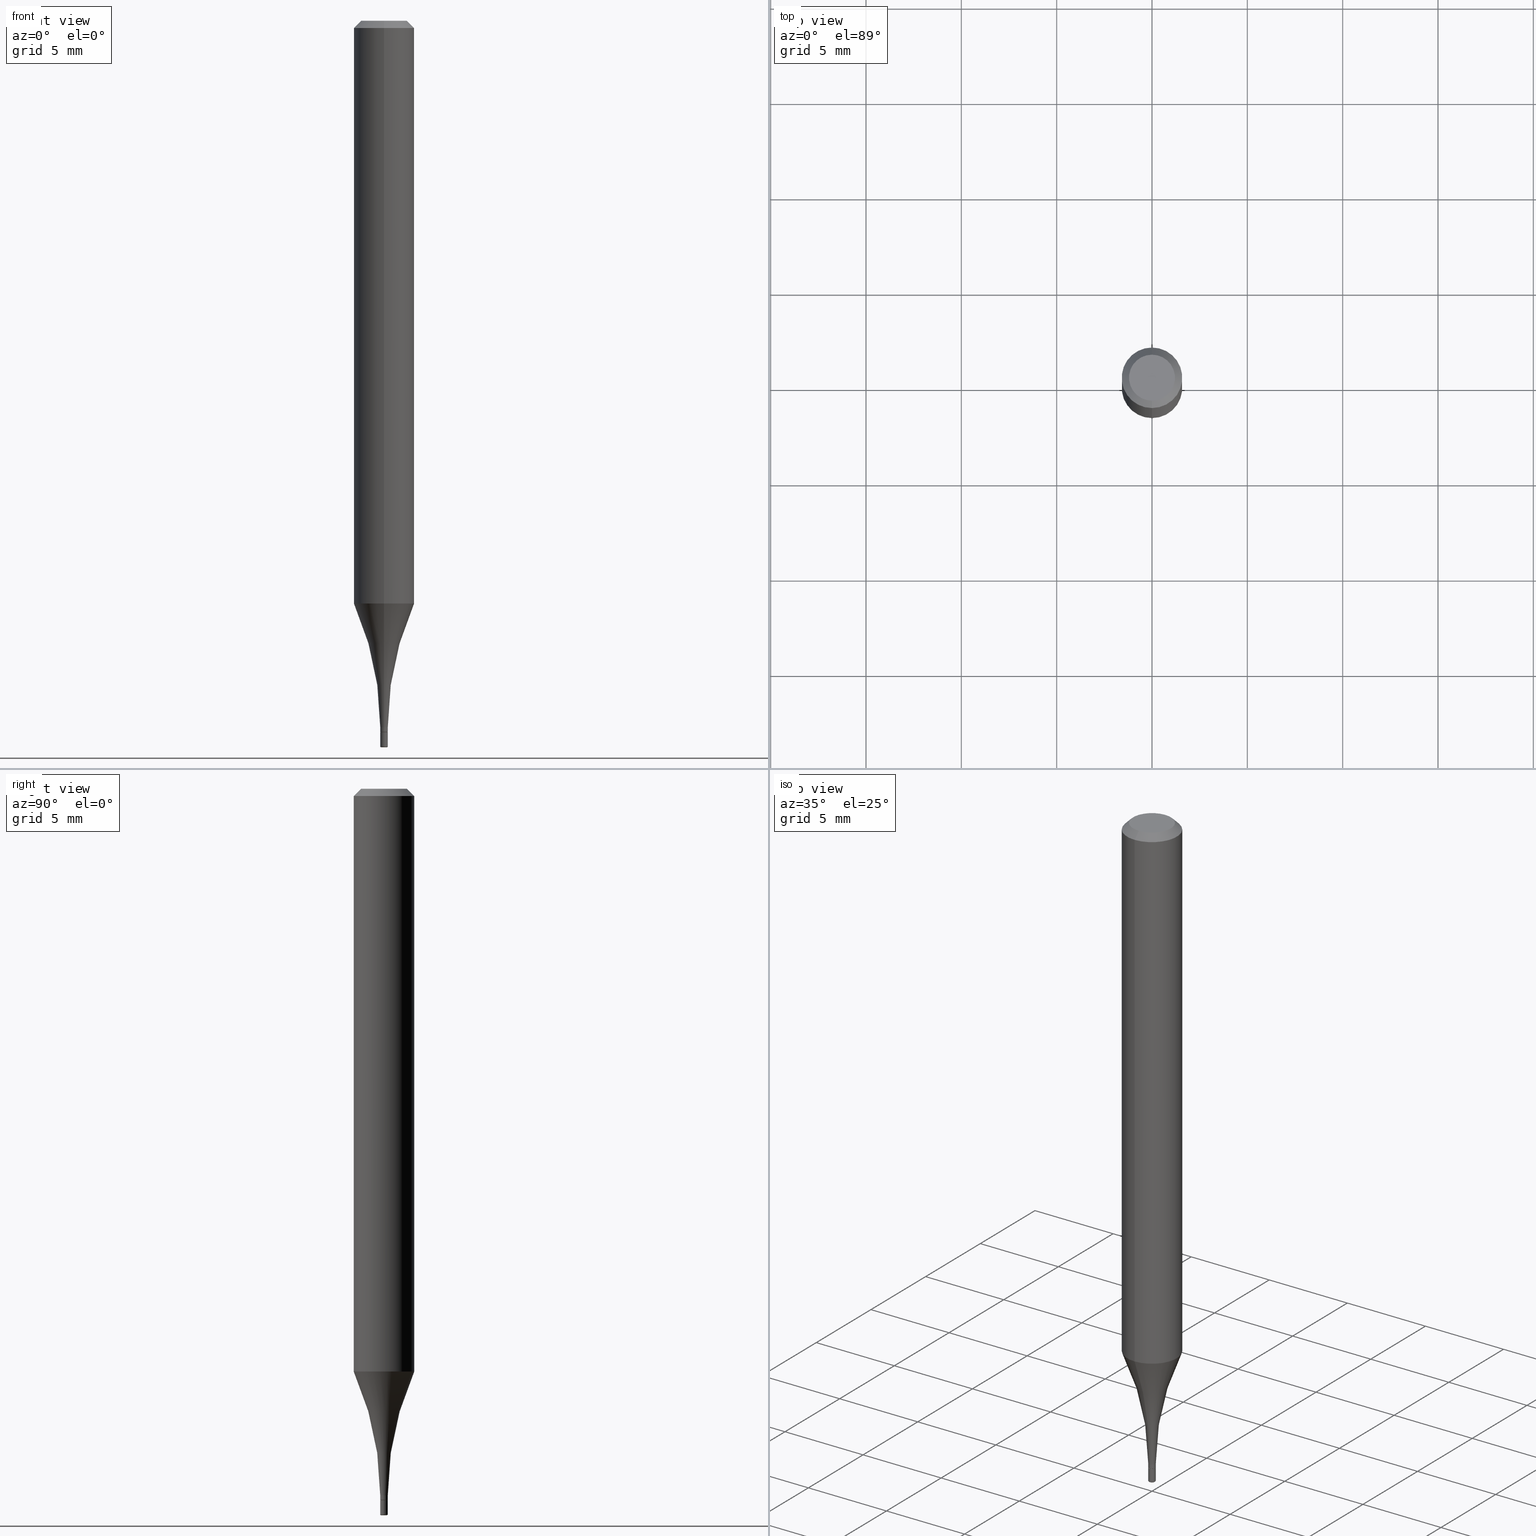
[diagram: canonical four-view strip — front | top / right | iso, engineering-drawing reading convention]
A machine part, canonical four-view strip (front | top / right | iso — engineering-drawing reading convention). The complete STEP part file that produces these views, byte-faithful:
ISO-10303-21;
HEADER;
FILE_DESCRIPTION (( 'STEP AP203' ),
    '1' );
FILE_NAME ('36874.STEP',
    '2024-02-29T19:32:57',
    ( '' ),
    ( '' ),
    'SwSTEP 2.0',
    'SolidWorks 2023',
    '' );
FILE_SCHEMA (( 'CONFIG_CONTROL_DESIGN' ));
ENDSEC;

DATA;
#1 = DIRECTION ( 'NONE',  ( 1.000000000000000000, -6.982962677686216223E-15, 4.883557194083094964E-29 ) ) ;
#2 = CIRCLE ( 'NONE', #344, 0.005800000000000006539 ) ;
#3 = CARTESIAN_POINT ( 'NONE',  ( 5.542233338928764555E-17, 0.007799999999999977091, -2.725085578910728171E-17 ) ) ;
#4 = EDGE_LOOP ( 'NONE', ( #346, #88 ) ) ;
#5 = ORIENTED_EDGE ( 'NONE', *, *, #269, .T. ) ;
#6 = DIRECTION ( 'NONE',  ( -2.443919900360709498E-29, 3.493699460141969769E-15, 1.000000000000000000 ) ) ;
#7 = DIRECTION ( 'NONE',  ( -2.443919900360709498E-29, 3.493699460141969375E-15, 1.000000000000000000 ) ) ;
#8 = AXIS2_PLACEMENT_3D ( 'NONE', #196, #116, #507 ) ;
#9 = AXIS2_PLACEMENT_3D ( 'NONE', #169, #374, #487 ) ;
#10 = VECTOR ( 'NONE', #160, 39.37007874015748143 ) ;
#11 = VECTOR ( 'NONE', #147, 39.37007874015748143 ) ;
#12 = DIRECTION ( 'NONE',  ( 1.000000000000000000, -6.982962677686265922E-15, 4.876176775795935793E-29 ) ) ;
#13 = DIRECTION ( 'NONE',  ( -2.445468806185136597E-29, 3.491481338843145583E-15, 1.000000000000000000 ) ) ;
#14 = PRODUCT ( '36874', '36874', '', ( #97 ) ) ;
#15 = ORIENTED_EDGE ( 'NONE', *, *, #288, .F. ) ;
#16 = APPROVAL_STATUS ( 'not_yet_approved' ) ;
#17 = DIRECTION ( 'NONE',  ( -2.443919900360709498E-29, 3.493699460141969769E-15, 1.000000000000000000 ) ) ;
#18 = ORIENTED_EDGE ( 'NONE', *, *, #42, .T. ) ;
#19 = PERSON_AND_ORGANIZATION_ROLE ( 'creator' ) ;
#20 = CARTESIAN_POINT ( 'NONE',  ( 3.589629549649811415E-29, -5.131545767056525971E-15, -1.468800000000000106 ) ) ;
#21 = CC_DESIGN_PERSON_AND_ORGANIZATION_ASSIGNMENT ( #497, #19, ( #211 ) ) ;
#22 = PERSON_AND_ORGANIZATION ( #204, #476 ) ;
#23 = CIRCLE ( 'NONE', #82, 0.6250000000000000000 ) ;
#24 = DIRECTION ( 'NONE',  ( -2.443919900360709498E-29, 3.493699460141969769E-15, 1.000000000000000000 ) ) ;
#25 = VERTEX_POINT ( 'NONE', #224 ) ;
#26 = EDGE_CURVE ( 'NONE', #478, #298, #102, .T. ) ;
#27 = COORDINATED_UNIVERSAL_TIME_OFFSET ( 5, 0, .BEHIND. ) ;
#28 = DIRECTION ( 'NONE',  ( -6.982962677686265922E-15, -1.000000000000000000, 4.370956789862820361E-15 ) ) ;
#29 = CIRCLE ( 'NONE', #154, 0.04750000000000000749 ) ;
#30 = COORDINATED_UNIVERSAL_TIME_OFFSET ( 5, 0, .BEHIND. ) ;
#31 = CARTESIAN_POINT ( 'NONE',  ( 3.665879850540992079E-31, -5.240549190212850327E-17, -0.01499999999999970281 ) ) ;
#32 = ORIENTED_EDGE ( 'NONE', *, *, #108, .F. ) ;
#33 = DIRECTION ( 'NONE',  ( -2.443919900360709498E-29, 3.493699460141969769E-15, 1.000000000000000000 ) ) ;
#34 = DIRECTION ( 'NONE',  ( -2.445468806185136597E-29, 3.491481338843145583E-15, 1.000000000000000000 ) ) ;
#35 = CC_DESIGN_DATE_AND_TIME_ASSIGNMENT ( #230, #72, ( #211 ) ) ;
#36 = TOROIDAL_SURFACE ( 'NONE', #466, 0.005800000000000002202, 0.001999999999999933255 ) ;
#37 = DIRECTION ( 'NONE',  ( 1.000000000000000000, -6.982962677686258033E-15, 0.000000000000000000 ) ) ;
#38 = LOCAL_TIME ( 14, 32, 57.00000000000000000, #30 ) ;
#39 = ORIENTED_EDGE ( 'NONE', *, *, #436, .F. ) ;
#40 = CIRCLE ( 'NONE', #94, 0.007299999999999967105 ) ;
#41 = CLOSED_SHELL ( 'NONE', ( #459, #520, #260, #178, #402, #488, #418, #323, #322, #247, #136, #161 ) ) ;
#42 = EDGE_CURVE ( 'NONE', #326, #233, #185, .T. ) ;
#43 = DIRECTION ( 'NONE',  ( -2.443919900360709498E-29, 3.493699460141969375E-15, 1.000000000000000000 ) ) ;
#44 = CARTESIAN_POINT ( 'NONE',  ( 3.567938988224114792E-29, -5.094071273372150151E-15, -1.459000000000000297 ) ) ;
#45 = DIRECTION ( 'NONE',  ( 1.000000000000000000, -6.982962677686283277E-15, 0.000000000000000000 ) ) ;
#46 = EDGE_CURVE ( 'NONE', #388, #257, #130, .T. ) ;
#47 = ORIENTED_EDGE ( 'NONE', *, *, #367, .F. ) ;
#48 = APPROVAL_PERSON_ORGANIZATION ( #265, #464, #463 ) ;
#49 = APPROVAL_STATUS ( 'not_yet_approved' ) ;
#50 = DIRECTION ( 'NONE',  ( 1.000000000000000000, -6.982962677686217012E-15, 0.000000000000000000 ) ) ;
#51 = LENGTH_MEASURE_WITH_UNIT ( LENGTH_MEASURE( 0.02539999999999999897 ), #381 );
#52 = EDGE_LOOP ( 'NONE', ( #187, #182, #5, #379 ) ) ;
#53 = EDGE_LOOP ( 'NONE', ( #454, #380, #150, #179 ) ) ;
#54 = AXIS2_PLACEMENT_3D ( 'NONE', #111, #64, #28 ) ;
#55 = ORIENTED_EDGE ( 'NONE', *, *, #308, .T. ) ;
#56 = CC_DESIGN_SECURITY_CLASSIFICATION ( #93, ( #386 ) ) ;
#57 = AXIS2_PLACEMENT_3D ( 'NONE', #31, #152, #198 ) ;
#58 = EDGE_CURVE ( 'NONE', #257, #421, #135, .T. ) ;
#59 = APPLICATION_PROTOCOL_DEFINITION ( 'international standard', 'config_control_design', 1994, #441 ) ;
#60 = ORIENTED_EDGE ( 'NONE', *, *, #327, .T. ) ;
#61 = CC_DESIGN_PERSON_AND_ORGANIZATION_ASSIGNMENT ( #22, #390, ( #386 ) ) ;
#62 = DIRECTION ( 'NONE',  ( -2.445468806185136597E-29, 3.491481338843145583E-15, 1.000000000000000000 ) ) ;
#63 = APPROVAL_DATE_TIME ( #357, #303 ) ;
#64 = DIRECTION ( 'NONE',  ( -2.443919900360709498E-29, 3.493699460141969769E-15, 1.000000000000000000 ) ) ;
#65 = EDGE_CURVE ( 'NONE', #25, #117, #276, .T. ) ;
#66 = ORIENTED_EDGE ( 'NONE', *, *, #144, .F. ) ;
#67 = AXIS2_PLACEMENT_3D ( 'NONE', #408, #207, #369 ) ;
#68 = AXIS2_PLACEMENT_3D ( 'NONE', #20, #315, #107 ) ;
#69 = DIRECTION ( 'NONE',  ( -6.982962677686265133E-15, -1.000000000000000000, 3.493699460141969375E-15 ) ) ;
#70 = PERSON_AND_ORGANIZATION ( #204, #476 ) ;
#71 = CYLINDRICAL_SURFACE ( 'NONE', #398, 0.007799999999999977091 ) ;
#72 = DATE_TIME_ROLE ( 'creation_date' ) ;
#73 = CARTESIAN_POINT ( 'NONE',  ( -5.446710888591676230E-17, -0.007800000000005097994, -1.468299999999999939 ) ) ;
#74 = AXIS2_PLACEMENT_3D ( 'NONE', #87, #457, #45 ) ;
#75 = DIRECTION ( 'NONE',  ( -2.443919900360709498E-29, 3.493699460141969769E-15, 1.000000000000000000 ) ) ;
#76 = DIRECTION ( 'NONE',  ( 7.105427357601001859E-15, 1.000000000000000000, -3.491481338843145583E-15 ) ) ;
#77 = CARTESIAN_POINT ( 'NONE',  ( 0.005800000000000006539, -5.277723191795298637E-15, -1.500000000000000222 ) ) ;
#78 = EDGE_LOOP ( 'NONE', ( #251, #215 ) ) ;
#79 = EDGE_CURVE ( 'NONE', #453, #388, #191, .T. ) ;
#80 = DIRECTION ( 'NONE',  ( -2.443919900360709498E-29, 3.493699460141969769E-15, 1.000000000000000000 ) ) ;
#81 = LOCAL_TIME ( 14, 32, 57.00000000000000000, #258 ) ;
#82 = AXIS2_PLACEMENT_3D ( 'NONE', #246, #320, #412 ) ;
#83 = ORIENTED_EDGE ( 'NONE', *, *, #46, .T. ) ;
#84 = DIRECTION ( 'NONE',  ( -6.982962677686265922E-15, -1.000000000000000000, 3.493699460141969375E-15 ) ) ;
#85 = CARTESIAN_POINT ( 'NONE',  ( 3.665879850540992079E-31, -5.240549190212850327E-17, -0.01499999999999970281 ) ) ;
#86 = EDGE_CURVE ( 'NONE', #401, #233, #149, .T. ) ;
#87 = CARTESIAN_POINT ( 'NONE',  ( 3.591904582524729329E-29, -5.128287790492812410E-15, -1.468800000000000106 ) ) ;
#88 = ORIENTED_EDGE ( 'NONE', *, *, #108, .T. ) ;
#89 = EDGE_LOOP ( 'NONE', ( #133, #96 ) ) ;
#90 = DIRECTION ( 'NONE',  ( -2.445468806185136597E-29, 3.491481338843145583E-15, 1.000000000000000000 ) ) ;
#91 = CIRCLE ( 'NONE', #157, 0.06250000000000001388 ) ;
#92 = DIRECTION ( 'NONE',  ( -6.982962677686265922E-15, -1.000000000000000000, 4.370956789862820361E-15 ) ) ;
#93 = SECURITY_CLASSIFICATION ( '', '', #151 ) ;
#94 = AXIS2_PLACEMENT_3D ( 'NONE', #241, #75, #278 ) ;
#95 = ORIENTED_EDGE ( 'NONE', *, *, #436, .T. ) ;
#96 = ORIENTED_EDGE ( 'NONE', *, *, #65, .T. ) ;
#97 = MECHANICAL_CONTEXT ( 'NONE', #446, 'mechanical' ) ;
#98 = CARTESIAN_POINT ( 'NONE',  ( 3.665879850540992079E-31, -5.240549190212850327E-17, -0.01499999999999970281 ) ) ;
#99 = ORIENTED_EDGE ( 'NONE', *, *, #481, .F. ) ;
#100 = EDGE_LOOP ( 'NONE', ( #99, #47 ) ) ;
#101 = DIRECTION ( 'NONE',  ( 1.000000000000000000, -6.982962677686283277E-15, 0.000000000000000000 ) ) ;
#102 = LINE ( 'NONE', #213, #336 ) ;
#103 = APPROVAL_PERSON_ORGANIZATION ( #189, #303, #194 ) ;
#104 = APPROVAL_DATE_TIME ( #393, #464 ) ;
#105 = DIRECTION ( 'NONE',  ( -6.982962677686265133E-15, -1.000000000000000000, 3.493699460141968980E-15 ) ) ;
#106 = EDGE_CURVE ( 'NONE', #186, #478, #91, .T. ) ;
#107 = DIRECTION ( 'NONE',  ( -6.982962677686265133E-15, -1.000000000000000000, 0.000000000000000000 ) ) ;
#108 = EDGE_CURVE ( 'NONE', #421, #238, #364, .T. ) ;
#109 = ADVANCED_BREP_SHAPE_REPRESENTATION ( '36874', ( #510, #177, #490 ), #414 ) ;
#110 = ORIENTED_EDGE ( 'NONE', *, *, #181, .T. ) ;
#111 = CARTESIAN_POINT ( 'NONE',  ( 2.940766808977116365E-29, -4.203965691105655160E-15, -1.203299178726387586 ) ) ;
#112 = AXIS2_PLACEMENT_3D ( 'NONE', #138, #403, #69 ) ;
#113 = PERSON_AND_ORGANIZATION_ROLE ( 'design_supplier' ) ;
#114 = CIRCLE ( 'NONE', #366, 0.007799999999999985764 ) ;
#115 = AXIS2_PLACEMENT_3D ( 'NONE', #259, #13, #425 ) ;
#116 = DIRECTION ( 'NONE',  ( -2.445468806185136597E-29, 3.491481338843145583E-15, 1.000000000000000000 ) ) ;
#117 = VERTEX_POINT ( 'NONE', #447 ) ;
#118 = PLANE ( 'NONE',  #360 ) ;
#119 = UNCERTAINTY_MEASURE_WITH_UNIT (LENGTH_MEASURE( 1.000000000000000082E-05 ), #292, 'distance_accuracy_value', 'NONE');
#120 = DIRECTION ( 'NONE',  ( -6.982962677686265922E-15, -1.000000000000000000, 3.483106191921935554E-15 ) ) ;
#121 = CIRCLE ( 'NONE', #474, 0.007799999999999935457 ) ;
#122 = APPROVAL ( #49, 'UNSPECIFIED' ) ;
#123 = LINE ( 'NONE', #440, #206 ) ;
#124 = LINE ( 'NONE', #477, #395 ) ;
#125 = EDGE_CURVE ( 'NONE', #25, #306, #173, .T. ) ;
#126 = CYLINDRICAL_SURFACE ( 'NONE', #139, 0.06250000000000001388 ) ;
#127 = EDGE_LOOP ( 'NONE', ( #110, #95, #287, #252 ) ) ;
#128 = CARTESIAN_POINT ( 'NONE',  ( 0.000000000000000000, 0.000000000000000000, 0.000000000000000000 ) ) ;
#129 = CIRCLE ( 'NONE', #245, 0.007799999999999968417 ) ;
#130 = CIRCLE ( 'NONE', #115, 0.007799999999999935457 ) ;
#131 = PERSON_AND_ORGANIZATION ( #204, #476 ) ;
#132 = ORIENTED_EDGE ( 'NONE', *, *, #351, .T. ) ;
#133 = ORIENTED_EDGE ( 'NONE', *, *, #232, .T. ) ;
#134 = FACE_OUTER_BOUND ( 'NONE', #171, .T. ) ;
#135 = LINE ( 'NONE', #375, #11 ) ;
#136 = ADVANCED_FACE ( 'NONE', ( #289 ), #358, .T. ) ;
#137 = DIRECTION ( 'NONE',  ( 6.982962677686265922E-15, 1.000000000000000000, -3.483106191921935554E-15 ) ) ;
#138 = CARTESIAN_POINT ( 'NONE',  ( 0.000000000000000000, 0.000000000000000000, 0.000000000000000000 ) ) ;
#139 = AXIS2_PLACEMENT_3D ( 'NONE', #280, #80, #180 ) ;
#140 = AXIS2_PLACEMENT_3D ( 'NONE', #128, #283, #479 ) ;
#141 = ORIENTED_EDGE ( 'NONE', *, *, #308, .F. ) ;
#142 = APPROVAL_ROLE ( '' ) ;
#143 = DIRECTION ( 'NONE',  ( -2.443919900360709498E-29, 3.493699460141969375E-15, 1.000000000000000000 ) ) ;
#144 = EDGE_CURVE ( 'NONE', #257, #388, #121, .T. ) ;
#145 = ORIENTED_EDGE ( 'NONE', *, *, #470, .T. ) ;
#146 = CARTESIAN_POINT ( 'NONE',  ( 3.663312271665334810E-29, -5.230239045587032951E-15, -1.498000000000000220 ) ) ;
#147 = DIRECTION ( 'NONE',  ( -2.445468806185136877E-29, 3.491481338843145188E-15, 1.000000000000000000 ) ) ;
#148 = ORIENTED_EDGE ( 'NONE', *, *, #174, .T. ) ;
#149 = LINE ( 'NONE', #3, #301 ) ;
#150 = ORIENTED_EDGE ( 'NONE', *, *, #407, .T. ) ;
#151 = SECURITY_CLASSIFICATION_LEVEL ( 'unclassified' ) ;
#152 = DIRECTION ( 'NONE',  ( -2.443919900360709498E-29, 3.493699460141969769E-15, 1.000000000000000000 ) ) ;
#153 = LINE ( 'NONE', #305, #10 ) ;
#154 = AXIS2_PLACEMENT_3D ( 'NONE', #462, #24, #105 ) ;
#155 = SHAPE_DEFINITION_REPRESENTATION ( #508, #109 ) ;
#156 = FACE_OUTER_BOUND ( 'NONE', #304, .T. ) ;
#157 = AXIS2_PLACEMENT_3D ( 'NONE', #217, #297, #92 ) ;
#158 = LOCAL_TIME ( 14, 32, 57.00000000000000000, #345 ) ;
#159 = AXIS2_PLACEMENT_3D ( 'NONE', #503, #391, #353 ) ;
#160 = DIRECTION ( 'NONE',  ( -2.443919900360709498E-29, 3.493699460141969375E-15, 1.000000000000000000 ) ) ;
#161 = ADVANCED_FACE ( 'NONE', ( #489 ), #378, .T. ) ;
#162 = DIRECTION ( 'NONE',  ( -2.443919900360709498E-29, 3.493699460141969769E-15, 1.000000000000000000 ) ) ;
#163 = ADVANCED_FACE ( 'NONE', ( #435 ), #36, .T. ) ;
#164 = CIRCLE ( 'NONE', #491, 0.001999999999999933255 ) ;
#165 = CARTESIAN_POINT ( 'NONE',  ( 3.589629549649811415E-29, -5.131545767056525971E-15, -1.468800000000000106 ) ) ;
#166 = FACE_OUTER_BOUND ( 'NONE', #295, .T. ) ;
#167 = CARTESIAN_POINT ( 'NONE',  ( 3.589629549649811415E-29, -5.131545767056525971E-15, -1.468800000000000106 ) ) ;
#168 = ADVANCED_FACE ( 'NONE', ( #156 ), #397, .T. ) ;
#169 = CARTESIAN_POINT ( 'NONE',  ( 3.589629549649811415E-29, -5.131545767056525971E-15, -1.468800000000000106 ) ) ;
#170 = CC_DESIGN_APPROVAL ( #303, ( #93 ) ) ;
#171 = EDGE_LOOP ( 'NONE', ( #448, #222, #60, #18 ) ) ;
#172 = CARTESIAN_POINT ( 'NONE',  ( 3.591904582524729329E-29, -5.128287790492812410E-15, -1.468800000000000106 ) ) ;
#173 = LINE ( 'NONE', #330, #205 ) ;
#174 = EDGE_CURVE ( 'NONE', #478, #186, #310, .T. ) ;
#175 = FACE_OUTER_BOUND ( 'NONE', #53, .T. ) ;
#176 = EDGE_LOOP ( 'NONE', ( #15, #255, #519, #409 ) ) ;
#177 = MANIFOLD_SOLID_BREP ( 'Body-Move/Copy2[2]', #41 ) ;
#178 = ADVANCED_FACE ( 'NONE', ( #361 ), #71, .T. ) ;
#179 = ORIENTED_EDGE ( 'NONE', *, *, #286, .F. ) ;
#180 = DIRECTION ( 'NONE',  ( -6.982962677686265133E-15, -1.000000000000000000, 3.493699460141969375E-15 ) ) ;
#181 = EDGE_CURVE ( 'NONE', #453, #291, #2, .T. ) ;
#182 = ORIENTED_EDGE ( 'NONE', *, *, #242, .T. ) ;
#183 = AXIS2_PLACEMENT_3D ( 'NONE', #334, #284, #12 ) ;
#184 = CIRCLE ( 'NONE', #282, 0.06250000000000000000 ) ;
#185 = CIRCLE ( 'NONE', #499, 0.007799999999999985764 ) ;
#186 = VERTEX_POINT ( 'NONE', #461 ) ;
#187 = ORIENTED_EDGE ( 'NONE', *, *, #86, .F. ) ;
#188 = DIRECTION ( 'NONE',  ( 6.982962677686265922E-15, 1.000000000000000000, -3.483106191921935554E-15 ) ) ;
#189 = PERSON_AND_ORGANIZATION ( #204, #476 ) ;
#190 = DIRECTION ( 'NONE',  ( -6.982962677686265133E-15, -1.000000000000000000, 3.493699460141968980E-15 ) ) ;
#191 = CIRCLE ( 'NONE', #240, 0.001999999999999933255 ) ;
#192 = LINE ( 'NONE', #311, #424 ) ;
#193 = AXIS2_PLACEMENT_3D ( 'NONE', #85, #445, #137 ) ;
#194 = APPROVAL_ROLE ( '' ) ;
#195 = CARTESIAN_POINT ( 'NONE',  ( 0.000000000000000000, 0.000000000000000000, 0.000000000000000000 ) ) ;
#196 = CARTESIAN_POINT ( 'NONE',  ( 0.000000000000000000, 0.000000000000000000, 0.000000000000000000 ) ) ;
#197 = CALENDAR_DATE ( 2024, 29, 2 ) ;
#198 = DIRECTION ( 'NONE',  ( -6.982962677686265922E-15, -1.000000000000000000, 3.483106191921935554E-15 ) ) ;
#199 = AXIS2_PLACEMENT_3D ( 'NONE', #98, #451, #188 ) ;
#200 = ORIENTED_EDGE ( 'NONE', *, *, #407, .F. ) ;
#201 = DIRECTION ( 'NONE',  ( 1.000000000000000000, -6.982962677686216223E-15, 4.883557194083094964E-29 ) ) ;
#202 = CYLINDRICAL_SURFACE ( 'NONE', #140, 0.007799999999999967550 ) ;
#203 = DIRECTION ( 'NONE',  ( -1.000000000000000000, 7.105427357600775456E-15, 0.000000000000000000 ) ) ;
#204 = PERSON ( 'UNSPECIFIED', 'UNSPECIFIED', 'UNSPECIFIED', ('UNSPECIFIED'), ('UNSPECIFIED'), ('UNSPECIFIED') ) ;
#205 = VECTOR ( 'NONE', #485, 39.37007874015748143 ) ;
#206 = VECTOR ( 'NONE', #277, 39.37007874015748143 ) ;
#207 = DIRECTION ( 'NONE',  ( 1.000000000000000000, -7.105427357601001070E-15, 4.926342672693569514E-29 ) ) ;
#208 = CARTESIAN_POINT ( 'NONE',  ( 3.565679134626275915E-29, -5.097307512347135368E-15, -1.459000000000000297 ) ) ;
#209 = DIRECTION ( 'NONE',  ( -2.443919900360709498E-29, 3.493699460141969769E-15, 1.000000000000000000 ) ) ;
#210 = DIRECTION ( 'NONE',  ( -2.443919900360709498E-29, 3.493699460141969769E-15, 1.000000000000000000 ) ) ;
#211 = PRODUCT_DEFINITION ( 'UNKNOWN', '', #386, #482 ) ;
#212 = AXIS2_PLACEMENT_3D ( 'NONE', #296, #6, #262 ) ;
#213 = CARTESIAN_POINT ( 'NONE',  ( 4.440892098500626162E-16, 0.06250000000000001388, -2.183562162588731352E-16 ) ) ;
#214 = ORIENTED_EDGE ( 'NONE', *, *, #481, .T. ) ;
#215 = ORIENTED_EDGE ( 'NONE', *, *, #351, .F. ) ;
#216 =( NAMED_UNIT ( * ) SI_UNIT ( $, .STERADIAN. ) SOLID_ANGLE_UNIT ( ) );
#217 = CARTESIAN_POINT ( 'NONE',  ( 2.940766808977116365E-29, -4.203965691105655160E-15, -1.203299178726387586 ) ) ;
#218 = EDGE_LOOP ( 'NONE', ( #39, #132, #333, #66 ) ) ;
#219 = APPLICATION_PROTOCOL_DEFINITION ( 'international standard', 'config_control_design', 1994, #446 ) ;
#220 = DIRECTION ( 'NONE',  ( -6.982962677686265922E-15, -1.000000000000000000, 0.000000000000000000 ) ) ;
#221 = VERTEX_POINT ( 'NONE', #73 ) ;
#222 = ORIENTED_EDGE ( 'NONE', *, *, #106, .F. ) ;
#223 = DIRECTION ( 'NONE',  ( 1.000000000000000000, 0.000000000000000000, 0.000000000000000000 ) ) ;
#224 = CARTESIAN_POINT ( 'NONE',  ( -3.773273898774340269E-16, -0.04750000000000000749, 4.392408844848639707E-16 ) ) ;
#225 = CONICAL_SURFACE ( 'NONE', #335, 0.007299999999999967105, 0.7853981633972775267 ) ;
#226 = ORIENTED_EDGE ( 'NONE', *, *, #288, .T. ) ;
#227 = ORIENTED_EDGE ( 'NONE', *, *, #58, .T. ) ;
#228 = CARTESIAN_POINT ( 'NONE',  ( -6.678992609098783564E-45, 9.547936849017268993E-31, 2.732901601281204480E-16 ) ) ;
#229 = CARTESIAN_POINT ( 'NONE',  ( 2.497557716197074649E-16, 0.007799999999994888279, -1.459000000000000297 ) ) ;
#230 = DATE_AND_TIME ( #234, #443 ) ;
#231 = DIRECTION ( 'NONE',  ( -1.000000000000000000, 6.982962677686265922E-15, -4.876176775795935793E-29 ) ) ;
#232 = EDGE_CURVE ( 'NONE', #117, #25, #29, .T. ) ;
#233 = VERTEX_POINT ( 'NONE', #229 ) ;
#234 = CALENDAR_DATE ( 2024, 29, 2 ) ;
#235 = FACE_OUTER_BOUND ( 'NONE', #486, .T. ) ;
#236 = PERSON_AND_ORGANIZATION_ROLE ( 'classification_officer' ) ;
#237 = PLANE ( 'NONE',  #159 ) ;
#238 = VERTEX_POINT ( 'NONE', #239 ) ;
#239 = CARTESIAN_POINT ( 'NONE',  ( 0.007799999999999999642, -5.182754899378765688E-15, -1.468800000000000106 ) ) ;
#240 = AXIS2_PLACEMENT_3D ( 'NONE', #496, #382, #492 ) ;
#241 = CARTESIAN_POINT ( 'NONE',  ( 3.589629549649811415E-29, -5.131545767056525971E-15, -1.468800000000000106 ) ) ;
#242 = EDGE_CURVE ( 'NONE', #401, #221, #129, .T. ) ;
#243 = DIRECTION ( 'NONE',  ( -2.445468806185136877E-29, 3.491481338843145188E-15, 1.000000000000000000 ) ) ;
#244 = CARTESIAN_POINT ( 'NONE',  ( 0.007799999999999967550, -5.446710888595264930E-17, 3.803417885120813835E-31 ) ) ;
#245 = AXIS2_PLACEMENT_3D ( 'NONE', #400, #465, #427 ) ;
#246 = CARTESIAN_POINT ( 'NONE',  ( -4.418818782439833684E-15, -0.6328000000000050251, -1.458999999999998076 ) ) ;
#247 = ADVANCED_FACE ( 'NONE', ( #355 ), #237, .F. ) ;
#248 = CARTESIAN_POINT ( 'NONE',  ( -5.446710888591711359E-17, -0.007800000000005083249, -1.459000000000000297 ) ) ;
#249 = PRODUCT_RELATED_PRODUCT_CATEGORY ( 'detail', '', ( #14 ) ) ;
#250 = DIRECTION ( 'NONE',  ( -2.443919900360709498E-29, 3.493699460141969769E-15, 1.000000000000000000 ) ) ;
#251 = ORIENTED_EDGE ( 'NONE', *, *, #181, .F. ) ;
#252 = ORIENTED_EDGE ( 'NONE', *, *, #79, .F. ) ;
#253 = CIRCLE ( 'NONE', #57, 0.06250000000000000000 ) ;
#254 = CARTESIAN_POINT ( 'NONE',  ( 3.663312271665334810E-29, -5.230239045587032951E-15, -1.498000000000000220 ) ) ;
#255 = ORIENTED_EDGE ( 'NONE', *, *, #367, .T. ) ;
#256 = EDGE_LOOP ( 'NONE', ( #83, #227, #383, #328 ) ) ;
#257 = VERTEX_POINT ( 'NONE', #432 ) ;
#258 = COORDINATED_UNIVERSAL_TIME_OFFSET ( 5, 0, .BEHIND. ) ;
#259 = CARTESIAN_POINT ( 'NONE',  ( 3.663312271665334810E-29, -5.230239045587032951E-15, -1.498000000000000220 ) ) ;
#260 = ADVANCED_FACE ( 'NONE', ( #235 ), #469, .T. ) ;
#261 = VERTEX_POINT ( 'NONE', #504 ) ;
#262 = DIRECTION ( 'NONE',  ( -6.982962677686265133E-15, -1.000000000000000000, 0.000000000000000000 ) ) ;
#263 = ORIENTED_EDGE ( 'NONE', *, *, #26, .F. ) ;
#264 = LOCAL_TIME ( 14, 32, 57.00000000000000000, #354 ) ;
#265 = PERSON_AND_ORGANIZATION ( #204, #476 ) ;
#266 = DIRECTION ( 'NONE',  ( -2.443919900360709498E-29, 3.493699460141969769E-15, 1.000000000000000000 ) ) ;
#267 = CARTESIAN_POINT ( 'NONE',  ( 5.446710888598878899E-17, 0.007799999999994870932, -1.468800000000000106 ) ) ;
#268 = CARTESIAN_POINT ( 'NONE',  ( 3.668203209277704895E-29, -5.237222008264718177E-15, -1.500000000000000222 ) ) ;
#269 = EDGE_CURVE ( 'NONE', #221, #326, #153, .T. ) ;
#270 = CC_DESIGN_APPROVAL ( #122, ( #211 ) ) ;
#271 = CIRCLE ( 'NONE', #319, 0.005800000000000006539 ) ;
#272 = CALENDAR_DATE ( 2024, 29, 2 ) ;
#273 = LINE ( 'NONE', #349, #452 ) ;
#274 = CARTESIAN_POINT ( 'NONE',  ( 4.364351673553919652E-16, 0.06249999999999995143, -0.01499999999999992138 ) ) ;
#275 = FACE_OUTER_BOUND ( 'NONE', #52, .T. ) ;
#276 = CIRCLE ( 'NONE', #290, 0.04750000000000000749 ) ;
#277 = DIRECTION ( 'NONE',  ( -4.937700262163704750E-15, -0.7071067811864243380, 0.7071067811866706965 ) ) ;
#278 = DIRECTION ( 'NONE',  ( -6.982962677686265133E-15, -1.000000000000000000, 0.000000000000000000 ) ) ;
#279 = ORIENTED_EDGE ( 'NONE', *, *, #327, .F. ) ;
#280 = CARTESIAN_POINT ( 'NONE',  ( 0.000000000000000000, 0.000000000000000000, 0.000000000000000000 ) ) ;
#281 = AXIS2_PLACEMENT_3D ( 'NONE', #172, #90, #101 ) ;
#282 = AXIS2_PLACEMENT_3D ( 'NONE', #472, #437, #120 ) ;
#283 = DIRECTION ( 'NONE',  ( -2.445468806185136597E-29, 3.491481338843145583E-15, 1.000000000000000000 ) ) ;
#284 = DIRECTION ( 'NONE',  ( -2.438088387897960049E-29, 3.491481338843145188E-15, 1.000000000000000000 ) ) ;
#285 = ORIENTED_EDGE ( 'NONE', *, *, #125, .F. ) ;
#286 = EDGE_CURVE ( 'NONE', #117, #298, #192, .T. ) ;
#287 = ORIENTED_EDGE ( 'NONE', *, *, #46, .F. ) ;
#288 = EDGE_CURVE ( 'NONE', #449, #401, #273, .T. ) ;
#289 = FACE_OUTER_BOUND ( 'NONE', #413, .T. ) ;
#290 = AXIS2_PLACEMENT_3D ( 'NONE', #228, #17, #190 ) ;
#291 = VERTEX_POINT ( 'NONE', #434 ) ;
#292 =( CONVERSION_BASED_UNIT ( 'INCH', #51 ) LENGTH_UNIT ( ) NAMED_UNIT ( #341 ) );
#293 = CIRCLE ( 'NONE', #67, 0.6250000000000000000 ) ;
#294 = AXIS2_PLACEMENT_3D ( 'NONE', #513, #321, #475 ) ;
#295 = EDGE_LOOP ( 'NONE', ( #338, #493, #200, #342 ) ) ;
#296 = CARTESIAN_POINT ( 'NONE',  ( 3.588407589699629660E-29, -5.129798917326454201E-15, -1.468299999999999939 ) ) ;
#297 = DIRECTION ( 'NONE',  ( -2.443919900360709498E-29, 3.493699460141969769E-15, 1.000000000000000000 ) ) ;
#298 = VERTEX_POINT ( 'NONE', #274 ) ;
#299 = DIRECTION ( 'NONE',  ( 0.000000000000000000, 0.000000000000000000, 1.000000000000000000 ) ) ;
#300 = ORIENTED_EDGE ( 'NONE', *, *, #415, .T. ) ;
#301 = VECTOR ( 'NONE', #143, 39.37007874015748143 ) ;
#302 = DIRECTION ( 'NONE',  ( 1.000000000000000000, -6.982962677686258033E-15, 0.000000000000000000 ) ) ;
#303 = APPROVAL ( #495, 'UNSPECIFIED' ) ;
#304 = EDGE_LOOP ( 'NONE', ( #370, #384, #337, #32 ) ) ;
#305 = CARTESIAN_POINT ( 'NONE',  ( -5.446710888595271093E-17, -0.007799999999999977091, 2.725085578910728171E-17 ) ) ;
#306 = VERTEX_POINT ( 'NONE', #359 ) ;
#307 = DIRECTION ( 'NONE',  ( -2.445468806185136597E-29, 3.491481338843145583E-15, 1.000000000000000000 ) ) ;
#308 = EDGE_CURVE ( 'NONE', #298, #306, #253, .T. ) ;
#309 = CALENDAR_DATE ( 2024, 29, 2 ) ;
#310 = CIRCLE ( 'NONE', #54, 0.06250000000000001388 ) ;
#311 = CARTESIAN_POINT ( 'NONE',  ( 4.364351673553919652E-16, 0.06249999999999995143, -0.01499999999999992138 ) ) ;
#312 = CONICAL_SURFACE ( 'NONE', #193, 0.06250000000000000000, 0.7853981633974488341 ) ;
#313 = AXIS2_PLACEMENT_3D ( 'NONE', #167, #43, #84 ) ;
#314 = ADVANCED_FACE ( 'NONE', ( #471 ), #118, .F. ) ;
#315 = DIRECTION ( 'NONE',  ( -2.443919900360709498E-29, 3.493699460141969769E-15, 1.000000000000000000 ) ) ;
#316 = DIRECTION ( 'NONE',  ( -6.982962677686265922E-15, -1.000000000000000000, 3.493699460141969375E-15 ) ) ;
#317 = FACE_OUTER_BOUND ( 'NONE', #348, .T. ) ;
#318 = CC_DESIGN_PERSON_AND_ORGANIZATION_ASSIGNMENT ( #423, #450, ( #14 ) ) ;
#319 = AXIS2_PLACEMENT_3D ( 'NONE', #371, #34, #37 ) ;
#320 = DIRECTION ( 'NONE',  ( -1.000000000000000000, 6.982962677686265922E-15, -4.883557194083112340E-29 ) ) ;
#321 = DIRECTION ( 'NONE',  ( -2.443919900360709498E-29, 3.493699460141969769E-15, 1.000000000000000000 ) ) ;
#322 = ADVANCED_FACE ( 'NONE', ( #363 ), #405, .F. ) ;
#323 = ADVANCED_FACE ( 'NONE', ( #372 ), #225, .T. ) ;
#324 = DIRECTION ( 'NONE',  ( -6.982962677686265133E-15, -1.000000000000000000, 0.000000000000000000 ) ) ;
#325 = CLOSED_SHELL ( 'NONE', ( #163, #392, #314, #168, #473, #515 ) ) ;
#326 = VERTEX_POINT ( 'NONE', #248 ) ;
#327 = EDGE_CURVE ( 'NONE', #186, #326, #23, .T. ) ;
#328 = ORIENTED_EDGE ( 'NONE', *, *, #368, .F. ) ;
#329 = CARTESIAN_POINT ( 'NONE',  ( 3.567938988224114792E-29, -5.094071273372150151E-15, -1.459000000000000297 ) ) ;
#330 = CARTESIAN_POINT ( 'NONE',  ( -4.287811248607203282E-16, -0.06250000000000005551, -0.01499999999999948597 ) ) ;
#331 = EDGE_LOOP ( 'NONE', ( #145, #389, #339, #458 ) ) ;
#332 = DIRECTION ( 'NONE',  ( -2.445468806185136597E-29, 3.491481338843145583E-15, 1.000000000000000000 ) ) ;
#333 = ORIENTED_EDGE ( 'NONE', *, *, #79, .T. ) ;
#334 = CARTESIAN_POINT ( 'NONE',  ( 3.625444894818735467E-29, -5.298454348222085751E-15, -1.500000000000000222 ) ) ;
#335 = AXIS2_PLACEMENT_3D ( 'NONE', #165, #33, #324 ) ;
#336 = VECTOR ( 'NONE', #7, 39.37007874015748143 ) ;
#337 = ORIENTED_EDGE ( 'NONE', *, *, #368, .T. ) ;
#338 = ORIENTED_EDGE ( 'NONE', *, *, #106, .T. ) ;
#339 = ORIENTED_EDGE ( 'NONE', *, *, #42, .F. ) ;
#340 = FACE_OUTER_BOUND ( 'NONE', #78, .T. ) ;
#341 = DIMENSIONAL_EXPONENTS ( 1.000000000000000000, 0.000000000000000000, 0.000000000000000000, 0.000000000000000000, 0.000000000000000000, 0.000000000000000000, 0.000000000000000000 ) ;
#342 = ORIENTED_EDGE ( 'NONE', *, *, #415, .F. ) ;
#343 = EDGE_CURVE ( 'NONE', #233, #326, #114, .T. ) ;
#344 = AXIS2_PLACEMENT_3D ( 'NONE', #268, #307, #302 ) ;
#345 = COORDINATED_UNIVERSAL_TIME_OFFSET ( 5, 0, .BEHIND. ) ;
#346 = ORIENTED_EDGE ( 'NONE', *, *, #483, .T. ) ;
#347 = CC_DESIGN_PERSON_AND_ORGANIZATION_ASSIGNMENT ( #70, #113, ( #386 ) ) ;
#348 = EDGE_LOOP ( 'NONE', ( #356, #376, #426, #279 ) ) ;
#349 = CARTESIAN_POINT ( 'NONE',  ( 5.186961971052296685E-17, 0.007299999999994834926, -1.468800000000000106 ) ) ;
#350 = CC_DESIGN_APPROVAL ( #464, ( #386 ) ) ;
#351 = EDGE_CURVE ( 'NONE', #291, #453, #271, .T. ) ;
#352 = CALENDAR_DATE ( 2024, 29, 2 ) ;
#353 = DIRECTION ( 'NONE',  ( 6.982962677686265922E-15, 1.000000000000000000, -3.493699460141969375E-15 ) ) ;
#354 = COORDINATED_UNIVERSAL_TIME_OFFSET ( 5, 0, .BEHIND. ) ;
#355 = FACE_OUTER_BOUND ( 'NONE', #89, .T. ) ;
#356 = ORIENTED_EDGE ( 'NONE', *, *, #174, .F. ) ;
#357 = DATE_AND_TIME ( #309, #264 ) ;
#358 = CONICAL_SURFACE ( 'NONE', #199, 0.06250000000000000000, 0.7853981633974488341 ) ;
#359 = CARTESIAN_POINT ( 'NONE',  ( -4.287811248607203282E-16, -0.06250000000000005551, -0.01499999999999948597 ) ) ;
#360 = AXIS2_PLACEMENT_3D ( 'NONE', #267, #430, #231 ) ;
#361 = FACE_OUTER_BOUND ( 'NONE', #331, .T. ) ;
#362 = CARTESIAN_POINT ( 'NONE',  ( 0.007799999999999935457, -5.284706154472985440E-15, -1.498000000000000220 ) ) ;
#363 = FACE_OUTER_BOUND ( 'NONE', #100, .T. ) ;
#364 = CIRCLE ( 'NONE', #74, 0.007799999999999999642 ) ;
#365 = TOROIDAL_SURFACE ( 'NONE', #431, 0.6328000000000000291, 0.6250000000000000000 ) ;
#366 = AXIS2_PLACEMENT_3D ( 'NONE', #208, #162, #509 ) ;
#367 = EDGE_CURVE ( 'NONE', #449, #261, #40, .T. ) ;
#368 = EDGE_CURVE ( 'NONE', #388, #238, #480, .T. ) ;
#369 = DIRECTION ( 'NONE',  ( 7.105427357601000281E-15, 1.000000000000000000, 0.000000000000000000 ) ) ;
#370 = ORIENTED_EDGE ( 'NONE', *, *, #58, .F. ) ;
#371 = CARTESIAN_POINT ( 'NONE',  ( 3.668203209277704895E-29, -5.237222008264718177E-15, -1.500000000000000222 ) ) ;
#372 = FACE_OUTER_BOUND ( 'NONE', #176, .T. ) ;
#373 = APPROVAL_PERSON_ORGANIZATION ( #131, #122, #142 ) ;
#374 = DIRECTION ( 'NONE',  ( -2.443919900360709498E-29, 3.493699460141969769E-15, 1.000000000000000000 ) ) ;
#375 = CARTESIAN_POINT ( 'NONE',  ( -0.007799999999999967550, 5.542233338928758392E-17, -3.836769370398810480E-31 ) ) ;
#376 = ORIENTED_EDGE ( 'NONE', *, *, #455, .T. ) ;
#377 = DIRECTION ( 'NONE',  ( -6.982962677686265922E-15, -1.000000000000000000, 3.493699460141969375E-15 ) ) ;
#378 = CYLINDRICAL_SURFACE ( 'NONE', #112, 0.06250000000000001388 ) ;
#379 = ORIENTED_EDGE ( 'NONE', *, *, #343, .F. ) ;
#380 = ORIENTED_EDGE ( 'NONE', *, *, #125, .T. ) ;
#381 =( LENGTH_UNIT ( ) NAMED_UNIT ( * ) SI_UNIT ( $, .METRE. ) );
#382 = DIRECTION ( 'NONE',  ( -6.982962677686266711E-15, -1.000000000000000000, 3.491481338843145583E-15 ) ) ;
#383 = ORIENTED_EDGE ( 'NONE', *, *, #483, .F. ) ;
#384 = ORIENTED_EDGE ( 'NONE', *, *, #144, .T. ) ;
#385 = CARTESIAN_POINT ( 'NONE',  ( 4.440892098500921985E-16, 0.06249999999999582972, -1.203299178726387586 ) ) ;
#386 = PRODUCT_DEFINITION_FORMATION_WITH_SPECIFIED_SOURCE ( 'ANY', '', #14, .NOT_KNOWN. ) ;
#387 = VECTOR ( 'NONE', #243, 39.37007874015748143 ) ;
#388 = VERTEX_POINT ( 'NONE', #362 ) ;
#389 = ORIENTED_EDGE ( 'NONE', *, *, #86, .T. ) ;
#390 = PERSON_AND_ORGANIZATION_ROLE ( 'creator' ) ;
#391 = DIRECTION ( 'NONE',  ( 2.443919900360709498E-29, -3.493699460141969375E-15, -1.000000000000000000 ) ) ;
#392 = ADVANCED_FACE ( 'NONE', ( #514 ), #202, .T. ) ;
#393 = DATE_AND_TIME ( #352, #158 ) ;
#394 = CARTESIAN_POINT ( 'NONE',  ( 3.663312271665334810E-29, -5.230239045587032951E-15, -1.498000000000000220 ) ) ;
#395 = VECTOR ( 'NONE', #411, 39.37007874015748143 ) ;
#396 = APPROVAL_DATE_TIME ( #429, #122 ) ;
#397 = CYLINDRICAL_SURFACE ( 'NONE', #8, 0.007799999999999967550 ) ;
#398 = AXIS2_PLACEMENT_3D ( 'NONE', #195, #266, #506 ) ;
#399 = PERSON_AND_ORGANIZATION ( #204, #476 ) ;
#400 = CARTESIAN_POINT ( 'NONE',  ( 3.588407589699629660E-29, -5.129798917326454201E-15, -1.468299999999999939 ) ) ;
#401 = VERTEX_POINT ( 'NONE', #444 ) ;
#402 = ADVANCED_FACE ( 'NONE', ( #317 ), #410, .F. ) ;
#403 = DIRECTION ( 'NONE',  ( -2.443919900360709498E-29, 3.493699460141969769E-15, 1.000000000000000000 ) ) ;
#404 = CC_DESIGN_PERSON_AND_ORGANIZATION_ASSIGNMENT ( #399, #236, ( #93 ) ) ;
#405 = PLANE ( 'NONE',  #313 ) ;
#406 = CARTESIAN_POINT ( 'NONE',  ( -0.007799999999999998775, -5.123841084650635448E-15, -1.468800000000000106 ) ) ;
#407 = EDGE_CURVE ( 'NONE', #306, #298, #184, .T. ) ;
#408 = CARTESIAN_POINT ( 'NONE',  ( 4.496314431889948893E-15, 0.6327999999999949221, -1.459000000000002295 ) ) ;
#409 = ORIENTED_EDGE ( 'NONE', *, *, #242, .F. ) ;
#410 = TOROIDAL_SURFACE ( 'NONE', #512, 0.6328000000000000291, 0.6250000000000000000 ) ;
#411 = DIRECTION ( 'NONE',  ( -2.443919900360709498E-29, 3.493699460141969375E-15, 1.000000000000000000 ) ) ;
#412 = DIRECTION ( 'NONE',  ( -6.982962677686265133E-15, -1.000000000000000000, 0.000000000000000000 ) ) ;
#413 = EDGE_LOOP ( 'NONE', ( #285, #419, #518, #55 ) ) ;
#414 =( GEOMETRIC_REPRESENTATION_CONTEXT ( 3 ) GLOBAL_UNCERTAINTY_ASSIGNED_CONTEXT ( ( #119 ) ) GLOBAL_UNIT_ASSIGNED_CONTEXT ( ( #292, #456, #216 ) ) REPRESENTATION_CONTEXT ( 'NONE', 'WORKASPACE' ) );
#415 = EDGE_CURVE ( 'NONE', #186, #306, #124, .T. ) ;
#416 = DIRECTION ( 'NONE',  ( -2.445468806185136597E-29, 3.491481338843145583E-15, 1.000000000000000000 ) ) ;
#417 = ORIENTED_EDGE ( 'NONE', *, *, #470, .F. ) ;
#418 = ADVANCED_FACE ( 'NONE', ( #275 ), #442, .T. ) ;
#419 = ORIENTED_EDGE ( 'NONE', *, *, #232, .F. ) ;
#420 = PLANE ( 'NONE',  #183 ) ;
#421 = VERTEX_POINT ( 'NONE', #406 ) ;
#422 = EDGE_LOOP ( 'NONE', ( #263, #148, #300, #141 ) ) ;
#423 = PERSON_AND_ORGANIZATION ( #204, #476 ) ;
#424 = VECTOR ( 'NONE', #468, 39.37007874015748143 ) ;
#425 = DIRECTION ( 'NONE',  ( 1.000000000000000000, -6.982962677686217012E-15, 0.000000000000000000 ) ) ;
#426 = ORIENTED_EDGE ( 'NONE', *, *, #343, .T. ) ;
#427 = DIRECTION ( 'NONE',  ( -6.982962677686265133E-15, -1.000000000000000000, 0.000000000000000000 ) ) ;
#428 = EDGE_CURVE ( 'NONE', #261, #221, #123, .T. ) ;
#429 = DATE_AND_TIME ( #272, #81 ) ;
#430 = DIRECTION ( 'NONE',  ( 2.438088387897960049E-29, -3.491481338843145188E-15, -1.000000000000000000 ) ) ;
#431 = AXIS2_PLACEMENT_3D ( 'NONE', #329, #210, #377 ) ;
#432 = CARTESIAN_POINT ( 'NONE',  ( -0.007799999999999935457, -5.123841084650635448E-15, -1.498000000000000220 ) ) ;
#433 = DATE_TIME_ROLE ( 'classification_date' ) ;
#434 = CARTESIAN_POINT ( 'NONE',  ( -0.005800000000000006539, -5.185413620894189734E-15, -1.500000000000000222 ) ) ;
#435 = FACE_OUTER_BOUND ( 'NONE', #127, .T. ) ;
#436 = EDGE_CURVE ( 'NONE', #291, #257, #164, .T. ) ;
#437 = DIRECTION ( 'NONE',  ( -2.443919900360709498E-29, 3.493699460141969769E-15, 1.000000000000000000 ) ) ;
#438 = CIRCLE ( 'NONE', #281, 0.007799999999999999642 ) ;
#439 = CARTESIAN_POINT ( 'NONE',  ( -0.005800000000000002202, -5.189027566912947735E-15, -1.498000000000000220 ) ) ;
#440 = CARTESIAN_POINT ( 'NONE',  ( -5.097562754707361341E-17, -0.007300000000005098418, -1.468800000000000106 ) ) ;
#441 = APPLICATION_CONTEXT ( 'configuration controlled 3d designs of mechanical parts and assemblies' ) ;
#442 = CYLINDRICAL_SURFACE ( 'NONE', #294, 0.007799999999999977091 ) ;
#443 = LOCAL_TIME ( 14, 32, 57.00000000000000000, #27 ) ;
#444 = CARTESIAN_POINT ( 'NONE',  ( 5.542233338932338465E-17, 0.007799999999994838840, -1.468299999999999939 ) ) ;
#445 = DIRECTION ( 'NONE',  ( 2.443919900360709498E-29, -3.493699460141969769E-15, -1.000000000000000000 ) ) ;
#446 = APPLICATION_CONTEXT ( 'configuration controlled 3d designs of mechanical parts and assemblies' ) ;
#447 = CARTESIAN_POINT ( 'NONE',  ( 3.840629472727447874E-16, 0.04750000000000000749, 1.073394357713768638E-16 ) ) ;
#448 = ORIENTED_EDGE ( 'NONE', *, *, #455, .F. ) ;
#449 = VERTEX_POINT ( 'NONE', #511 ) ;
#450 = PERSON_AND_ORGANIZATION_ROLE ( 'design_owner' ) ;
#451 = DIRECTION ( 'NONE',  ( 2.443919900360709498E-29, -3.493699460141969769E-15, -1.000000000000000000 ) ) ;
#452 = VECTOR ( 'NONE', #500, 39.37007874015748143 ) ;
#453 = VERTEX_POINT ( 'NONE', #77 ) ;
#454 = ORIENTED_EDGE ( 'NONE', *, *, #65, .F. ) ;
#455 = EDGE_CURVE ( 'NONE', #478, #233, #293, .T. ) ;
#456 =( NAMED_UNIT ( * ) PLANE_ANGLE_UNIT ( ) SI_UNIT ( $, .RADIAN. ) );
#457 = DIRECTION ( 'NONE',  ( -2.445468806185136597E-29, 3.491481338843145583E-15, 1.000000000000000000 ) ) ;
#458 = ORIENTED_EDGE ( 'NONE', *, *, #269, .F. ) ;
#459 = ADVANCED_FACE ( 'NONE', ( #166 ), #126, .T. ) ;
#460 = ORIENTED_EDGE ( 'NONE', *, *, #428, .F. ) ;
#461 = CARTESIAN_POINT ( 'NONE',  ( -4.364351673553626788E-16, -0.06250000000000423273, -1.203299178726387364 ) ) ;
#462 = CARTESIAN_POINT ( 'NONE',  ( -6.678992609098783564E-45, 9.547936849017268993E-31, 2.732901601281204480E-16 ) ) ;
#463 = APPROVAL_ROLE ( '' ) ;
#464 = APPROVAL ( #16, 'UNSPECIFIED' ) ;
#465 = DIRECTION ( 'NONE',  ( -2.443919900360709498E-29, 3.493699460141969769E-15, 1.000000000000000000 ) ) ;
#466 = AXIS2_PLACEMENT_3D ( 'NONE', #394, #62, #201 ) ;
#467 = CIRCLE ( 'NONE', #212, 0.007799999999999968417 ) ;
#468 = DIRECTION ( 'NONE',  ( 4.937700262164550409E-15, 0.7071067811865454633, -0.7071067811865495711 ) ) ;
#469 = CONICAL_SURFACE ( 'NONE', #68, 0.007299999999999967105, 0.7853981633972775267 ) ;
#470 = EDGE_CURVE ( 'NONE', #221, #401, #467, .T. ) ;
#471 = FACE_OUTER_BOUND ( 'NONE', #4, .T. ) ;
#472 = CARTESIAN_POINT ( 'NONE',  ( 3.665879850540992079E-31, -5.240549190212850327E-17, -0.01499999999999970281 ) ) ;
#473 = ADVANCED_FACE ( 'NONE', ( #516 ), #498, .T. ) ;
#474 = AXIS2_PLACEMENT_3D ( 'NONE', #254, #416, #50 ) ;
#475 = DIRECTION ( 'NONE',  ( -6.982962677686265133E-15, -1.000000000000000000, 3.493699460141969375E-15 ) ) ;
#476 = ORGANIZATION ( 'UNSPECIFIED', 'UNSPECIFIED', '' ) ;
#477 = CARTESIAN_POINT ( 'NONE',  ( -4.364351673553916694E-16, -0.06250000000000001388, 2.183562162588731352E-16 ) ) ;
#478 = VERTEX_POINT ( 'NONE', #385 ) ;
#479 = DIRECTION ( 'NONE',  ( 1.000000000000000000, -6.982962677686265922E-15, 4.876176775795935232E-29 ) ) ;
#480 = LINE ( 'NONE', #244, #387 ) ;
#481 = EDGE_CURVE ( 'NONE', #261, #449, #517, .T. ) ;
#482 = DESIGN_CONTEXT ( 'detailed design', #441, 'design' ) ;
#483 = EDGE_CURVE ( 'NONE', #238, #421, #438, .T. ) ;
#484 = CARTESIAN_POINT ( 'NONE',  ( 0.000000000000000000, 0.000000000000000000, 0.000000000000000000 ) ) ;
#485 = DIRECTION ( 'NONE',  ( -4.851104656540966641E-15, -0.7071067811865503483, -0.7071067811865446862 ) ) ;
#486 = EDGE_LOOP ( 'NONE', ( #214, #226, #417, #460 ) ) ;
#487 = DIRECTION ( 'NONE',  ( -6.982962677686265133E-15, -1.000000000000000000, 0.000000000000000000 ) ) ;
#488 = ADVANCED_FACE ( 'NONE', ( #134 ), #365, .F. ) ;
#489 = FACE_OUTER_BOUND ( 'NONE', #422, .T. ) ;
#490 = AXIS2_PLACEMENT_3D ( 'NONE', #484, #299, #223 ) ;
#491 = AXIS2_PLACEMENT_3D ( 'NONE', #439, #76, #203 ) ;
#492 = DIRECTION ( 'NONE',  ( 1.000000000000000000, -6.982962677686080539E-15, 0.000000000000000000 ) ) ;
#493 = ORIENTED_EDGE ( 'NONE', *, *, #26, .T. ) ;
#494 = CARTESIAN_POINT ( 'NONE',  ( 3.565679134626275915E-29, -5.097307512347135368E-15, -1.459000000000000297 ) ) ;
#495 = APPROVAL_STATUS ( 'not_yet_approved' ) ;
#496 = CARTESIAN_POINT ( 'NONE',  ( 0.005800000000000002202, -5.270740229117613412E-15, -1.498000000000000220 ) ) ;
#497 = PERSON_AND_ORGANIZATION ( #204, #476 ) ;
#498 = TOROIDAL_SURFACE ( 'NONE', #505, 0.005800000000000002202, 0.001999999999999933255 ) ;
#499 = AXIS2_PLACEMENT_3D ( 'NONE', #494, #250, #220 ) ;
#500 = DIRECTION ( 'NONE',  ( 5.024295867787204109E-15, 0.7071067811864292230, 0.7071067811866658115 ) ) ;
#501 = CC_DESIGN_DATE_AND_TIME_ASSIGNMENT ( #502, #433, ( #93 ) ) ;
#502 = DATE_AND_TIME ( #197, #38 ) ;
#503 = CARTESIAN_POINT ( 'NONE',  ( 3.316907271900976589E-16, 0.04750000000000000749, -2.930564429268336024E-17 ) ) ;
#504 = CARTESIAN_POINT ( 'NONE',  ( -5.097562754707361341E-17, -0.007300000000005098418, -1.468800000000000106 ) ) ;
#505 = AXIS2_PLACEMENT_3D ( 'NONE', #146, #332, #1 ) ;
#506 = DIRECTION ( 'NONE',  ( -6.982962677686265133E-15, -1.000000000000000000, 3.493699460141969375E-15 ) ) ;
#507 = DIRECTION ( 'NONE',  ( 1.000000000000000000, -6.982962677686265922E-15, 4.876176775795935232E-29 ) ) ;
#508 = PRODUCT_DEFINITION_SHAPE ( 'NONE', 'NONE',  #211 ) ;
#509 = DIRECTION ( 'NONE',  ( -6.982962677686265922E-15, -1.000000000000000000, 0.000000000000000000 ) ) ;
#510 = MANIFOLD_SOLID_BREP ( 'Body-Move/Copy2[1]', #325 ) ;
#511 = CARTESIAN_POINT ( 'NONE',  ( 5.364597654992312644E-17, 0.007299999999994834926, -1.468800000000000106 ) ) ;
#512 = AXIS2_PLACEMENT_3D ( 'NONE', #44, #209, #316 ) ;
#513 = CARTESIAN_POINT ( 'NONE',  ( 0.000000000000000000, 0.000000000000000000, 0.000000000000000000 ) ) ;
#514 = FACE_OUTER_BOUND ( 'NONE', #256, .T. ) ;
#515 = ADVANCED_FACE ( 'NONE', ( #340 ), #420, .F. ) ;
#516 = FACE_OUTER_BOUND ( 'NONE', #218, .T. ) ;
#517 = CIRCLE ( 'NONE', #9, 0.007299999999999967105 ) ;
#518 = ORIENTED_EDGE ( 'NONE', *, *, #286, .T. ) ;
#519 = ORIENTED_EDGE ( 'NONE', *, *, #428, .T. ) ;
#520 = ADVANCED_FACE ( 'NONE', ( #175 ), #312, .T. ) ;
ENDSEC;
END-ISO-10303-21;
